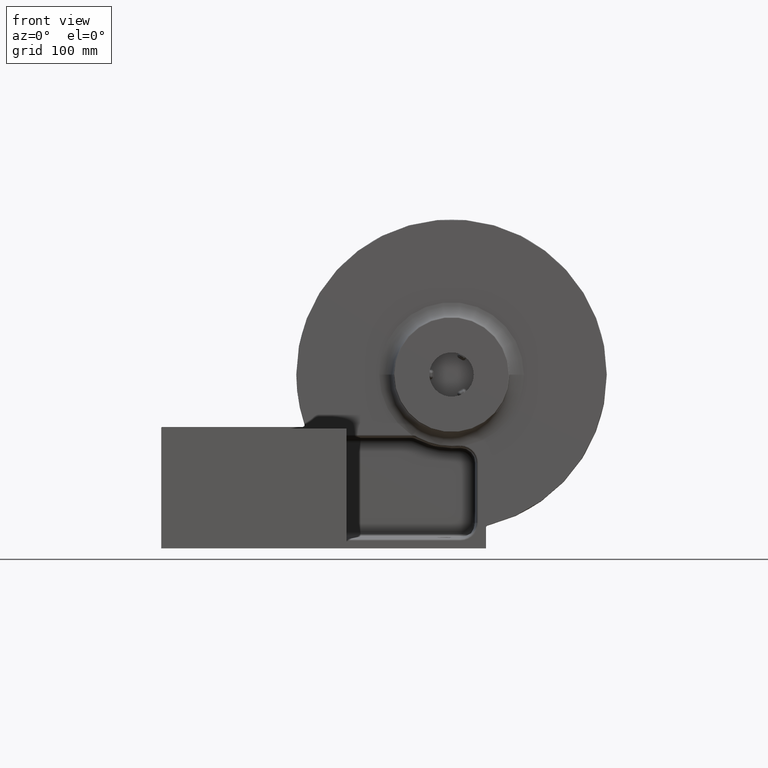
[diagram: clean part render]
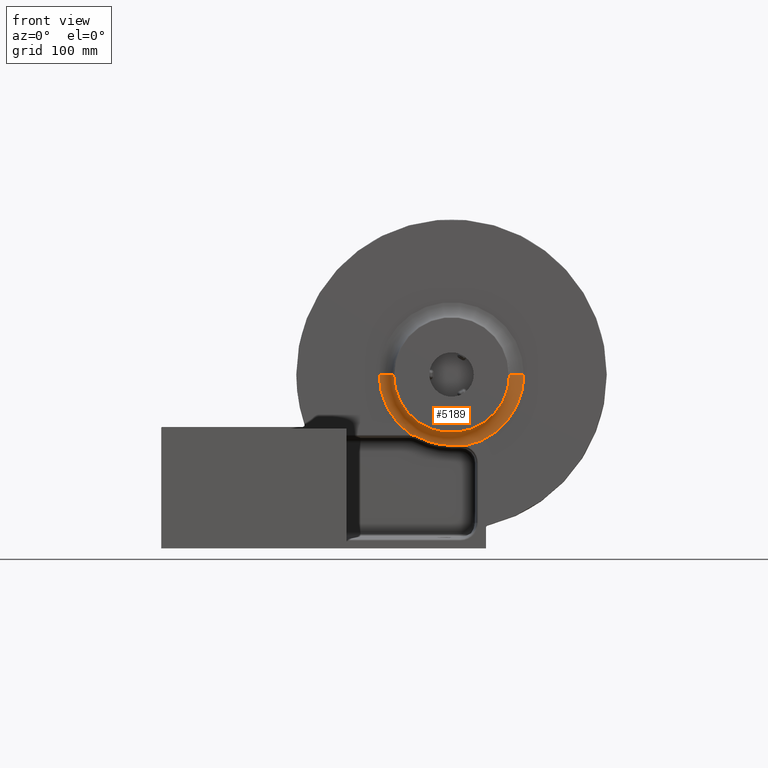
[diagram: same view with one face highlighted and labeled with its STEP entity id]
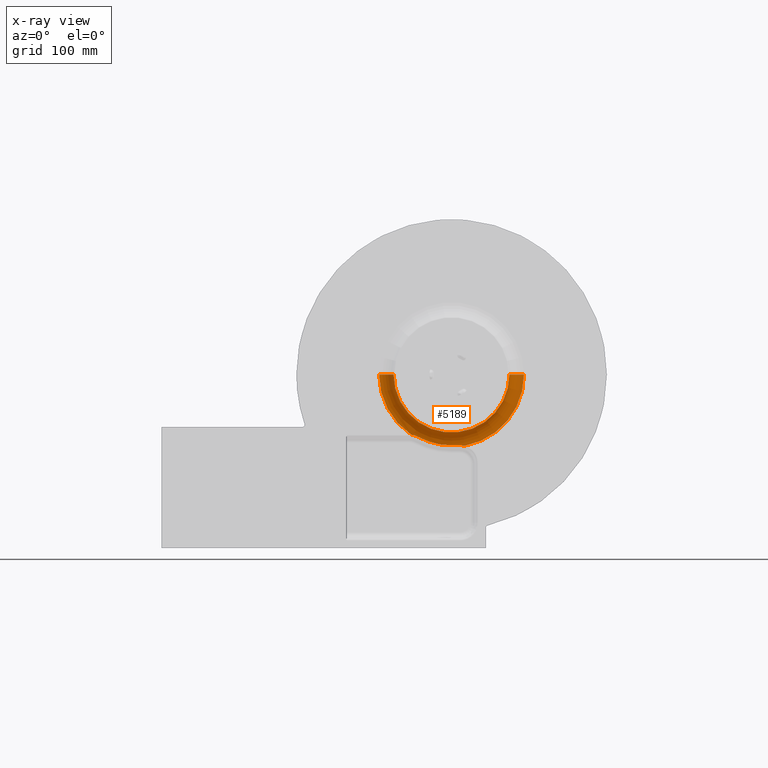
[diagram: x-ray of the same camera — body ghosted, the highlighted face saturated]
A machine part, front view. The second image highlights one B-rep face of the part: STEP entity #5189.
The next image is the same camera in x-ray: the body ghosted, the highlighted face saturated — about 0% of this face is hidden behind the body in this view.
In plain terms, the highlighted toroidal blend (fillet) surface has major radius 75 mm and minor (blend) radius 15 mm.
Its self-contained STEP definition (entity closure, byte-faithful):
#21 = B_SPLINE_CURVE_WITH_KNOTS ( 'NONE', 3,
 ( #5681, #2067, #2054, #2040, #2024, #2021, #2010, #1995 ),
 .UNSPECIFIED., .F., .F.,
 ( 4, 2, 2, 4 ),
 ( 0.0000000000000000000, 0.001916073407169522616, 0.003832146814339046966, 0.007664293628678253527 ),
 .UNSPECIFIED. ) ;
#36 = CIRCLE ( 'NONE', #6490, 14.99999999999998579 ) ;
#399 = ORIENTED_EDGE ( 'NONE', *, *, #7660, .F. ) ;
#507 = ORIENTED_EDGE ( 'NONE', *, *, #5178, .T. ) ;
#597 = CIRCLE ( 'NONE', #7059, 73.27830368419819251 ) ;
#636 = CARTESIAN_POINT ( 'NONE',  ( 312.7546367390820024, 399.9998999999999683, -17.67930477039470105 ) ) ;
#644 = CARTESIAN_POINT ( 'NONE',  ( 358.7417837622145385, 384.9999000000000251, 55.99999999999999289 ) ) ;
#731 = EDGE_CURVE ( 'NONE', #10758, #5978, #4437, .T. ) ;
#821 = ORIENTED_EDGE ( 'NONE', *, *, #2798, .T. ) ;
#972 = CIRCLE ( 'NONE', #7426, 60.00000000000005684 ) ;
#1029 = ORIENTED_EDGE ( 'NONE', *, *, #8832, .F. ) ;
#1044 = ORIENTED_EDGE ( 'NONE', *, *, #8758, .F. ) ;
#1147 = ORIENTED_EDGE ( 'NONE', *, *, #731, .F. ) ;
#1173 = ORIENTED_EDGE ( 'NONE', *, *, #8443, .F. ) ;
#1288 = ORIENTED_EDGE ( 'NONE', *, *, #7761, .F. ) ;
#1385 = VERTEX_POINT ( 'NONE', #8822 ) ;
#1752 = CARTESIAN_POINT ( 'NONE',  ( 238.7417837622144532, 384.9999000000000251, 55.99999999999998579 ) ) ;
#1779 = DIRECTION ( 'NONE',  ( 1.000000000000000000, -1.214623636765614367E-16, 0.0000000000000000000 ) ) ;
#1795 = DIRECTION ( 'NONE',  ( 1.214623636765614367E-16, 1.000000000000000000, 0.0000000000000000000 ) ) ;
#1819 = CARTESIAN_POINT ( 'NONE',  ( 298.7417837622144816, 384.9999000000000251, 55.99999999999999289 ) ) ;
#1837 = FACE_OUTER_BOUND ( 'NONE', #6244, .T. ) ;
#1890 = DIRECTION ( 'NONE',  ( 1.000000000000000000, 0.0000000000000000000, 0.0000000000000000000 ) ) ;
#1903 = DIRECTION ( 'NONE',  ( -1.214623636765614367E-16, -1.000000000000000000, -0.0000000000000000000 ) ) ;
#1933 = CARTESIAN_POINT ( 'NONE',  ( 298.7417837622144816, 399.9998999999999683, 55.99999999999999289 ) ) ;
#1995 = CARTESIAN_POINT ( 'NONE',  ( 257.0723349140823757, 399.9998999999999683, -6.359097433276783562 ) ) ;
#2010 = CARTESIAN_POINT ( 'NONE',  ( 258.3415900296425889, 399.9999000000000251, -6.518559194274613056 ) ) ;
#2012 = CARTESIAN_POINT ( 'NONE',  ( 223.7417837622144532, 399.9998999999999683, 55.99999999999998579 ) ) ;
#2021 = CARTESIAN_POINT ( 'NONE',  ( 259.5762921435972430, 399.9693432065976140, -6.798526359991638124 ) ) ;
#2024 = CARTESIAN_POINT ( 'NONE',  ( 261.3826090297473570, 399.9322099620832773, -7.380691009474355191 ) ) ;
#2040 = CARTESIAN_POINT ( 'NONE',  ( 261.9770055646165474, 399.9208867736244315, -7.602065211228464570 ) ) ;
#2054 = CARTESIAN_POINT ( 'NONE',  ( 263.1504383458041616, 399.9051396538654330, -8.099511259710650890 ) ) ;
#2067 = CARTESIAN_POINT ( 'NONE',  ( 263.7282720681392902, 399.9007644647265920, -8.375245251654739320 ) ) ;
#2154 = VERTEX_POINT ( 'NONE', #7199 ) ;
#2205 = ORIENTED_EDGE ( 'NONE', *, *, #6793, .T. ) ;
#2339 = DIRECTION ( 'NONE',  ( -1.000000000000000000, 0.0000000000000000000, 0.0000000000000000000 ) ) ;
#2351 = DIRECTION ( 'NONE',  ( 1.228705302314797606E-16, 1.000000000000000000, -0.0000000000000000000 ) ) ;
#2363 = CARTESIAN_POINT ( 'NONE',  ( 298.7417837622144816, 399.9007644647305142, 55.99999999999999289 ) ) ;
#2740 = CIRCLE ( 'NONE', #9235, 75.00000000000007105 ) ;
#2798 = EDGE_CURVE ( 'NONE', #1385, #9388, #6730, .T. ) ;
#3460 = CARTESIAN_POINT ( 'NONE',  ( 257.0723349140823757, 399.9998999999999683, -6.359097433276783562 ) ) ;
#4000 = VERTEX_POINT ( 'NONE', #1752 ) ;
#4101 = CARTESIAN_POINT ( 'NONE',  ( 298.7417837622144248, 399.9007644647267057, -17.27830368419863660 ) ) ;
#4104 = CARTESIAN_POINT ( 'NONE',  ( 301.8293010418697691, 399.9007644647267057, -17.27830368419858331 ) ) ;
#4116 = CARTESIAN_POINT ( 'NONE',  ( 304.9167052517642560, 399.9236521694027147, -17.25517541768377683 ) ) ;
#4132 = CARTESIAN_POINT ( 'NONE',  ( 308.0037598678097766, 399.9512921137017543, -17.20985094419563666 ) ) ;
#4269 = CARTESIAN_POINT ( 'NONE',  ( 298.7417837622144248, 399.9007644647267057, -17.27830368419863660 ) ) ;
#4437 = B_SPLINE_CURVE_WITH_KNOTS ( 'NONE', 3,
 ( #7991, #7973, #7932, #7918, #7871, #7855 ),
 .UNSPECIFIED., .F., .F.,
 ( 4, 2, 4 ),
 ( 0.0000000000000000000, 0.002387131158290888445, 0.004774262316581776890 ),
 .UNSPECIFIED. ) ;
#4949 = CIRCLE ( 'NONE', #11327, 75.00000000000007105 ) ;
#5158 = VERTEX_POINT ( 'NONE', #2012 ) ;
#5178 = EDGE_CURVE ( 'NONE', #5158, #6344, #2740, .T. ) ;
#5189 = ADVANCED_FACE ( 'NONE', ( #1837 ), #10599, .F. ) ;
#5253 = AXIS2_PLACEMENT_3D ( 'NONE', #6652, #6641, #6594 ) ;
#5668 = AXIS2_PLACEMENT_3D ( 'NONE', #1819, #1795, #1779 ) ;
#5681 = CARTESIAN_POINT ( 'NONE',  ( 264.2923181931129193, 399.9007644647267057, -8.675684092531387392 ) ) ;
#5978 = VERTEX_POINT ( 'NONE', #8109 ) ;
#6244 = EDGE_LOOP ( 'NONE', ( #399, #507, #1029, #1044, #1173, #1147, #2205, #821, #1288 ) ) ;
#6344 = VERTEX_POINT ( 'NONE', #3460 ) ;
#6490 = AXIS2_PLACEMENT_3D ( 'NONE', #10641, #10625, #10615 ) ;
#6594 = DIRECTION ( 'NONE',  ( 1.000000000000000000, 0.0000000000000000000, 0.0000000000000000000 ) ) ;
#6641 = DIRECTION ( 'NONE',  ( -0.0000000000000000000, 0.0000000000000000000, 1.000000000000000000 ) ) ;
#6652 = CARTESIAN_POINT ( 'NONE',  ( 373.7417837622145385, 384.9999000000000251, 55.99999999999999289 ) ) ;
#6730 = CIRCLE ( 'NONE', #5253, 15.00000000000001421 ) ;
#6784 = B_SPLINE_CURVE_WITH_KNOTS ( 'NONE', 3,
 ( #4132, #4116, #4104, #4101 ),
 .UNSPECIFIED., .F., .F.,
 ( 4, 4 ),
 ( 0.0000000000000000000, 0.009262466065965618833 ),
 .UNSPECIFIED. ) ;
#6793 = EDGE_CURVE ( 'NONE', #10758, #1385, #4949, .T. ) ;
#7059 = AXIS2_PLACEMENT_3D ( 'NONE', #2363, #2351, #2339 ) ;
#7199 = CARTESIAN_POINT ( 'NONE',  ( 264.2923181931129193, 399.9007644647267057, -8.675684092531387392 ) ) ;
#7426 = AXIS2_PLACEMENT_3D ( 'NONE', #9504, #9493, #9477 ) ;
#7660 = EDGE_CURVE ( 'NONE', #5158, #4000, #36, .T. ) ;
#7761 = EDGE_CURVE ( 'NONE', #4000, #9388, #972, .T. ) ;
#7855 = CARTESIAN_POINT ( 'NONE',  ( 308.0037598678097766, 399.9512921137017543, -17.20985094419563666 ) ) ;
#7871 = CARTESIAN_POINT ( 'NONE',  ( 308.8044753407115763, 399.9584613198943543, -17.19809475205233795 ) ) ;
#7918 = CARTESIAN_POINT ( 'NONE',  ( 309.6007505863600500, 399.9696995915387561, -17.23085238240678052 ) ) ;
#7932 = CARTESIAN_POINT ( 'NONE',  ( 311.1844436705740691, 399.9904005374718281, -17.38618852885820232 ) ) ;
#7973 = CARTESIAN_POINT ( 'NONE',  ( 311.9718631329313325, 399.9998999999999114, -17.50874680306376519 ) ) ;
#7991 = CARTESIAN_POINT ( 'NONE',  ( 312.7546367390820024, 399.9998999999999683, -17.67930477039470105 ) ) ;
#8109 = CARTESIAN_POINT ( 'NONE',  ( 308.0037598678097766, 399.9512921137017543, -17.20985094419563666 ) ) ;
#8443 = EDGE_CURVE ( 'NONE', #5978, #10398, #6784, .T. ) ;
#8758 = EDGE_CURVE ( 'NONE', #10398, #2154, #597, .T. ) ;
#8822 = CARTESIAN_POINT ( 'NONE',  ( 373.7417837622145385, 399.9998999999999683, 55.99999999999999289 ) ) ;
#8832 = EDGE_CURVE ( 'NONE', #2154, #6344, #21, .T. ) ;
#9235 = AXIS2_PLACEMENT_3D ( 'NONE', #1933, #1903, #1890 ) ;
#9388 = VERTEX_POINT ( 'NONE', #644 ) ;
#9477 = DIRECTION ( 'NONE',  ( 1.000000000000000000, 0.0000000000000000000, 0.0000000000000000000 ) ) ;
#9493 = DIRECTION ( 'NONE',  ( -1.214623636765614367E-16, -1.000000000000000000, -0.0000000000000000000 ) ) ;
#9504 = CARTESIAN_POINT ( 'NONE',  ( 298.7417837622144816, 384.9999000000000251, 55.99999999999999289 ) ) ;
#10283 = DIRECTION ( 'NONE',  ( 1.000000000000000000, 0.0000000000000000000, 0.0000000000000000000 ) ) ;
#10296 = DIRECTION ( 'NONE',  ( -1.214623636765614367E-16, -1.000000000000000000, -0.0000000000000000000 ) ) ;
#10342 = CARTESIAN_POINT ( 'NONE',  ( 298.7417837622144816, 399.9998999999999683, 55.99999999999999289 ) ) ;
#10398 = VERTEX_POINT ( 'NONE', #4269 ) ;
#10599 = TOROIDAL_SURFACE ( 'NONE', #5668, 75.00000000000004263, 15.00000000000000000 ) ;
#10615 = DIRECTION ( 'NONE',  ( -1.000000000000000000, 0.0000000000000000000, 0.0000000000000000000 ) ) ;
#10625 = DIRECTION ( 'NONE',  ( 1.224646799147353207E-16, -1.487484948933726914E-32, -1.000000000000000000 ) ) ;
#10641 = CARTESIAN_POINT ( 'NONE',  ( 223.7417837622144532, 384.9999000000000251, 55.99999999999998579 ) ) ;
#10758 = VERTEX_POINT ( 'NONE', #636 ) ;
#11327 = AXIS2_PLACEMENT_3D ( 'NONE', #10342, #10296, #10283 ) ;